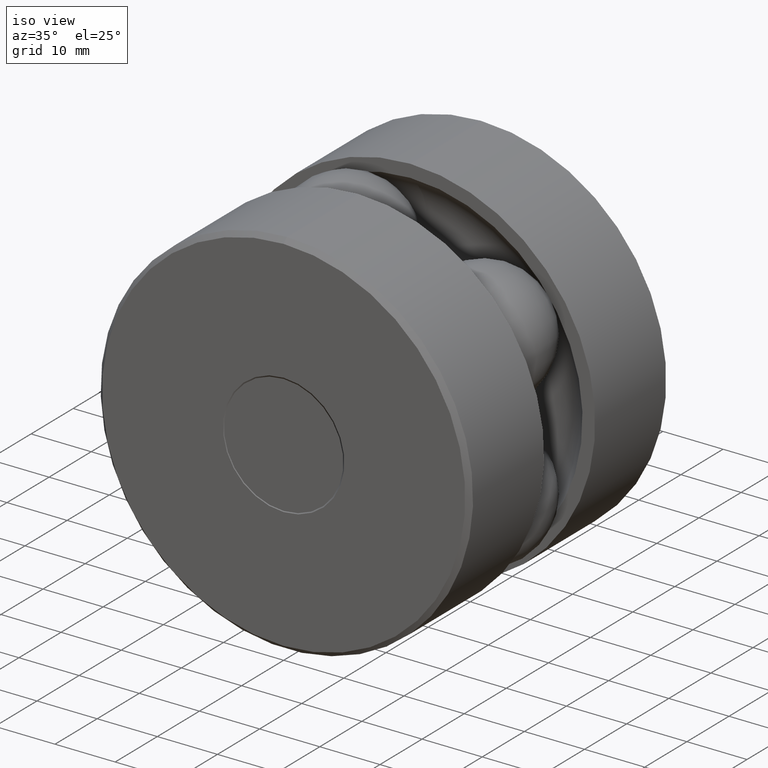
[diagram: clean part render]
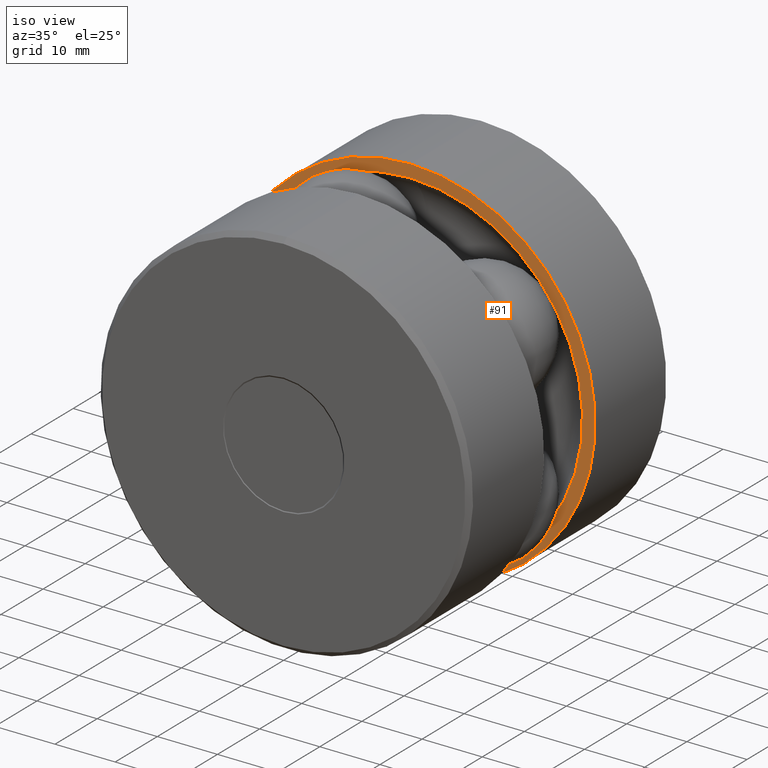
[diagram: same view with one face highlighted and labeled with its STEP entity id]
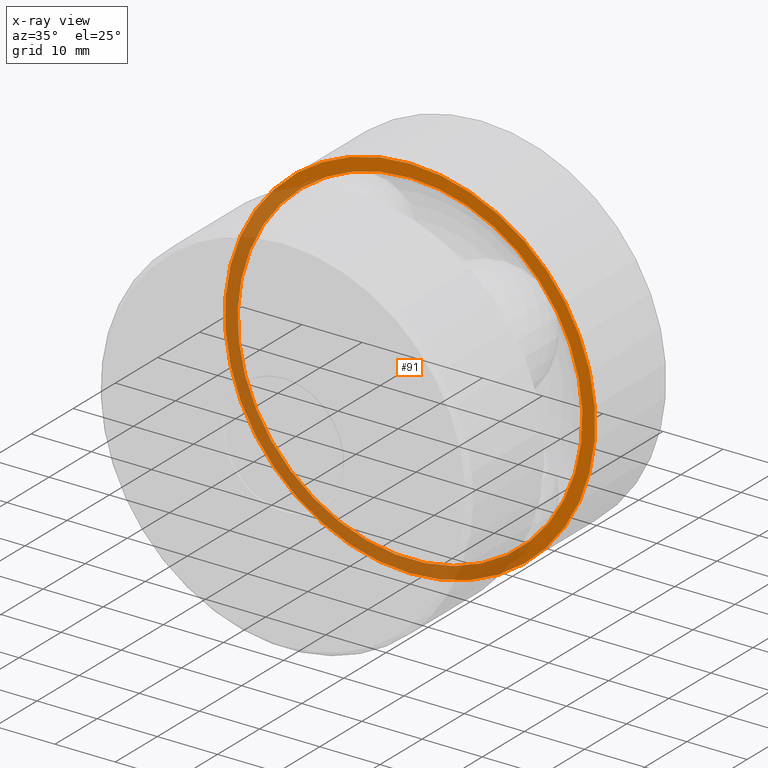
[diagram: x-ray of the same camera — body ghosted, the highlighted face saturated]
A machine part, iso view. The second image highlights one B-rep face of the part: STEP entity #91.
The next image is the same camera in x-ray: the body ghosted, the highlighted face saturated — about 49% of this face is hidden behind the body in this view.
In plain terms, the highlighted planar face has unit normal (0, -1, 0).
Its self-contained STEP definition (entity closure, byte-faithful):
#12 = DIRECTION ( 'NONE',  ( 0.0000000000000000000, -0.0000000000000000000, -1.000000000000000000 ) ) ;
#27 = AXIS2_PLACEMENT_3D ( 'NONE', #248, #527, #291 ) ;
#48 = DIRECTION ( 'NONE',  ( -0.0000000000000000000, 1.000000000000000000, -0.0000000000000000000 ) ) ;
#54 = EDGE_LOOP ( 'NONE', ( #303 ) ) ;
#75 = EDGE_LOOP ( 'NONE', ( #364 ) ) ;
#84 = DIRECTION ( 'NONE',  ( 0.0000000000000000000, -1.000000000000000000, 0.0000000000000000000 ) ) ;
#91 = ADVANCED_FACE ( 'NONE', ( #330, #529 ), #533, .T. ) ;
#120 = AXIS2_PLACEMENT_3D ( 'NONE', #292, #48, #332 ) ;
#161 = EDGE_CURVE ( 'NONE', #449, #449, #502, .T. ) ;
#186 = EDGE_CURVE ( 'NONE', #342, #342, #283, .T. ) ;
#233 = CARTESIAN_POINT ( 'NONE',  ( 0.0000000000000000000, 1.181249999999999900, 1.128499999999999600 ) ) ;
#248 = CARTESIAN_POINT ( 'NONE',  ( 0.0000000000000000000, 1.181249999999999900, 0.0000000000000000000 ) ) ;
#283 = CIRCLE ( 'NONE', #120, 1.211749999999999900 ) ;
#291 = DIRECTION ( 'NONE',  ( 0.0000000000000000000, 0.0000000000000000000, 1.000000000000000000 ) ) ;
#292 = CARTESIAN_POINT ( 'NONE',  ( 0.0000000000000000000, 1.181249999999999900, 0.0000000000000000000 ) ) ;
#303 = ORIENTED_EDGE ( 'NONE', *, *, #186, .F. ) ;
#330 = FACE_BOUND ( 'NONE', #75, .T. ) ;
#332 = DIRECTION ( 'NONE',  ( 0.0000000000000000000, 0.0000000000000000000, 1.000000000000000000 ) ) ;
#342 = VERTEX_POINT ( 'NONE', #507 ) ;
#364 = ORIENTED_EDGE ( 'NONE', *, *, #161, .T. ) ;
#447 = AXIS2_PLACEMENT_3D ( 'NONE', #489, #84, #12 ) ;
#449 = VERTEX_POINT ( 'NONE', #233 ) ;
#489 = CARTESIAN_POINT ( 'NONE',  ( -1.211749999999999900, 1.181249999999999900, 0.0000000000000000000 ) ) ;
#502 = CIRCLE ( 'NONE', #27, 1.128499999999999600 ) ;
#507 = CARTESIAN_POINT ( 'NONE',  ( 0.0000000000000000000, 1.181249999999999900, 1.211749999999999900 ) ) ;
#527 = DIRECTION ( 'NONE',  ( -0.0000000000000000000, 1.000000000000000000, -0.0000000000000000000 ) ) ;
#529 = FACE_OUTER_BOUND ( 'NONE', #54, .T. ) ;
#533 = PLANE ( 'NONE',  #447 ) ;